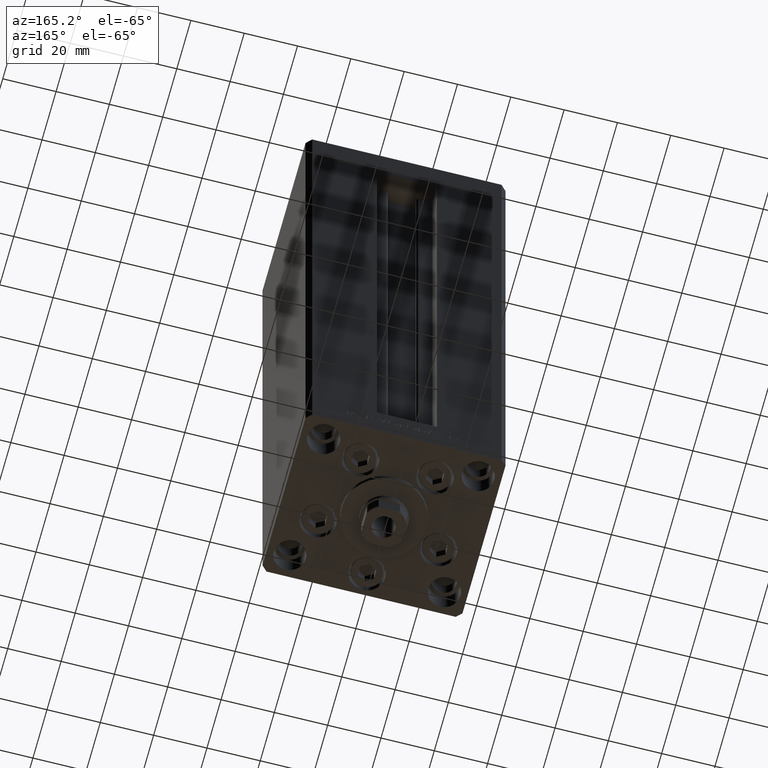
[diagram: clean part render]
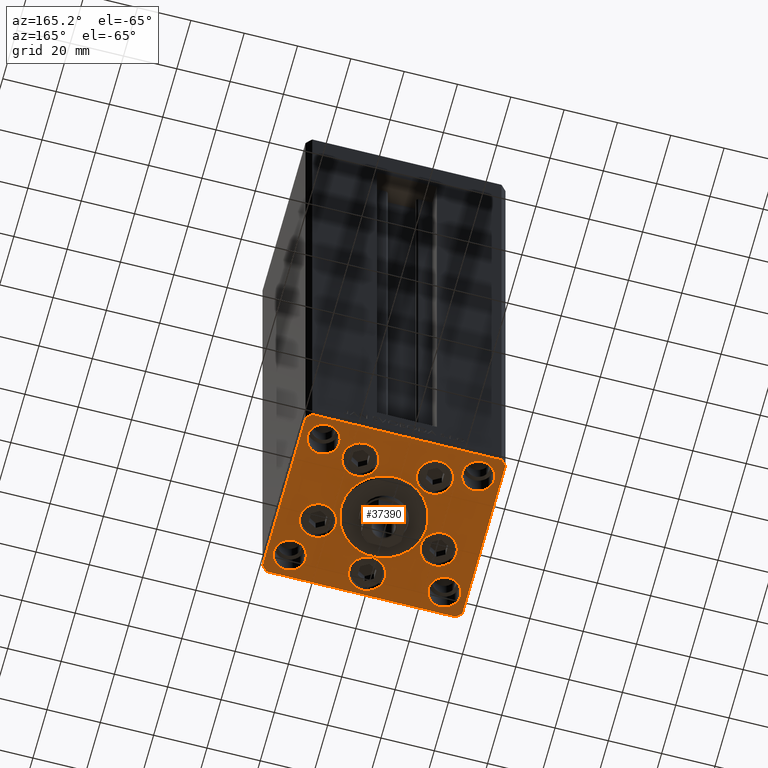
[diagram: same view with one face highlighted and labeled with its STEP entity id]
A machine part, auxiliary view. The second image highlights one B-rep face of the part: STEP entity #37390.
In plain terms, the highlighted planar face has unit normal (0, 0, -1).
Its self-contained STEP definition (entity closure, byte-faithful):
#359 = CARTESIAN_POINT ( 'NONE',  ( 35.50000000000001421, -32.49999999999992184, 0.000000000000000000 ) ) ;
#496 = ORIENTED_EDGE ( 'NONE', *, *, #2240, .F. ) ;
#528 = DIRECTION ( 'NONE',  ( 0.000000000000000000, 0.000000000000000000, 1.000000000000000000 ) ) ;
#600 = VERTEX_POINT ( 'NONE', #22889 ) ;
#1406 = CIRCLE ( 'NONE', #20385, 6.749999999999997335 ) ;
#1536 = CIRCLE ( 'NONE', #8664, 6.000000000000001776 ) ;
#1597 = CARTESIAN_POINT ( 'NONE',  ( -6.750000000001552536, -24.00000000000001066, 0.000000000000000000 ) ) ;
#1715 = CARTESIAN_POINT ( 'NONE',  ( 0.000000000000000000, -6.938893903907228378E-15, 0.000000000000000000 ) ) ;
#1798 = CARTESIAN_POINT ( 'NONE',  ( -35.00000000000000000, 24.00000000000000711, 0.000000000000000000 ) ) ;
#1935 = EDGE_CURVE ( 'NONE', #41405, #36576, #33788, .T. ) ;
#2147 = PLANE ( 'NONE',  #36180 ) ;
#2240 = EDGE_CURVE ( 'NONE', #36576, #41405, #34502, .T. ) ;
#2251 = CARTESIAN_POINT ( 'NONE',  ( -35.00000000000000000, -23.99999999999999645, 0.000000000000000000 ) ) ;
#2419 = CARTESIAN_POINT ( 'NONE',  ( 13.99106857963324124, 19.50000000000000000, 0.000000000000000000 ) ) ;
#2526 = CIRCLE ( 'NONE', #29377, 6.000000000000001776 ) ;
#3060 = EDGE_LOOP ( 'NONE', ( #496, #31984 ) ) ;
#3471 = EDGE_CURVE ( 'NONE', #28219, #40447, #32967, .T. ) ;
#3516 = ORIENTED_EDGE ( 'NONE', *, *, #20631, .F. ) ;
#4025 = CARTESIAN_POINT ( 'NONE',  ( -22.62741699796953299, -8.000000000000000000, 0.000000000000000000 ) ) ;
#4722 = DIRECTION ( 'NONE',  ( 1.000000000000000000, 0.000000000000000000, 0.000000000000000000 ) ) ;
#5156 = EDGE_CURVE ( 'NONE', #8485, #43566, #35390, .T. ) ;
#5217 = CARTESIAN_POINT ( 'NONE',  ( 20.74106857963323947, 19.50000000000000000, 0.000000000000000000 ) ) ;
#5413 = DIRECTION ( 'NONE',  ( 0.000000000000000000, 0.000000000000000000, 1.000000000000000000 ) ) ;
#5847 = AXIS2_PLACEMENT_3D ( 'NONE', #41131, #25776, #21097 ) ;
#5895 = DIRECTION ( 'NONE',  ( 0.000000000000000000, 0.000000000000000000, 1.000000000000000000 ) ) ;
#6058 = VERTEX_POINT ( 'NONE', #7255 ) ;
#6112 = ORIENTED_EDGE ( 'NONE', *, *, #12583, .F. ) ;
#6222 = ORIENTED_EDGE ( 'NONE', *, *, #5156, .F. ) ;
#6353 = AXIS2_PLACEMENT_3D ( 'NONE', #38885, #15626, #26985 ) ;
#6508 = ORIENTED_EDGE ( 'NONE', *, *, #48006, .F. ) ;
#6629 = CARTESIAN_POINT ( 'NONE',  ( -20.74106857963324302, 19.50000000000000000, 0.000000000000000000 ) ) ;
#6668 = DIRECTION ( 'NONE',  ( 0.000000000000000000, 1.000000000000000000, 0.000000000000000000 ) ) ;
#6968 = DIRECTION ( 'NONE',  ( 0.000000000000000000, 0.000000000000000000, 1.000000000000000000 ) ) ;
#7100 = AXIS2_PLACEMENT_3D ( 'NONE', #20287, #8430, #4722 ) ;
#7255 = CARTESIAN_POINT ( 'NONE',  ( 35.50000000000001421, -32.49999999999992184, 0.000000000000000000 ) ) ;
#7303 = VERTEX_POINT ( 'NONE', #35947 ) ;
#7353 = EDGE_CURVE ( 'NONE', #45140, #14384, #1406, .T. ) ;
#7479 = DIRECTION ( 'NONE',  ( 1.000000000000000000, 0.000000000000000000, 0.000000000000000000 ) ) ;
#7958 = CARTESIAN_POINT ( 'NONE',  ( -29.00000000000000000, -23.99999999999999645, 0.000000000000000000 ) ) ;
#8430 = DIRECTION ( 'NONE',  ( 0.000000000000000000, 0.000000000000000000, 1.000000000000000000 ) ) ;
#8485 = VERTEX_POINT ( 'NONE', #27507 ) ;
#8664 = AXIS2_PLACEMENT_3D ( 'NONE', #41184, #21646, #48112 ) ;
#8933 = EDGE_LOOP ( 'NONE', ( #6112, #38231 ) ) ;
#9131 = EDGE_CURVE ( 'NONE', #43734, #18466, #29944, .T. ) ;
#9251 = AXIS2_PLACEMENT_3D ( 'NONE', #2419, #20508, #40043 ) ;
#9348 = DIRECTION ( 'NONE',  ( -0.7071067811865524577, 0.7071067811865426878, 0.000000000000000000 ) ) ;
#9465 = ORIENTED_EDGE ( 'NONE', *, *, #23485, .T. ) ;
#9730 = EDGE_CURVE ( 'NONE', #27048, #38372, #20459, .T. ) ;
#9830 = FACE_BOUND ( 'NONE', #23410, .T. ) ;
#10068 = EDGE_CURVE ( 'NONE', #38372, #27048, #1536, .T. ) ;
#10100 = AXIS2_PLACEMENT_3D ( 'NONE', #18231, #47682, #48169 ) ;
#10123 = EDGE_CURVE ( 'NONE', #18466, #43734, #45775, .T. ) ;
#10402 = ORIENTED_EDGE ( 'NONE', *, *, #21008, .T. ) ;
#10794 = EDGE_CURVE ( 'NONE', #19507, #22353, #30762, .T. ) ;
#11188 = ORIENTED_EDGE ( 'NONE', *, *, #35158, .T. ) ;
#11199 = CARTESIAN_POINT ( 'NONE',  ( 15.87741699796952410, -8.000000000000000000, 0.000000000000000000 ) ) ;
#11251 = CARTESIAN_POINT ( 'NONE',  ( -37.50000000000001421, 30.50000000000000000, 0.000000000000000000 ) ) ;
#11635 = AXIS2_PLACEMENT_3D ( 'NONE', #23788, #528, #15642 ) ;
#11916 = DIRECTION ( 'NONE',  ( 0.000000000000000000, 0.000000000000000000, 1.000000000000000000 ) ) ;
#12419 = ORIENTED_EDGE ( 'NONE', *, *, #40176, .F. ) ;
#12450 = EDGE_LOOP ( 'NONE', ( #3516, #28535 ) ) ;
#12583 = EDGE_CURVE ( 'NONE', #40447, #28219, #40346, .T. ) ;
#12615 = AXIS2_PLACEMENT_3D ( 'NONE', #4025, #46577, #42143 ) ;
#12872 = DIRECTION ( 'NONE',  ( 1.000000000000000000, 0.000000000000000000, 0.000000000000000000 ) ) ;
#12881 = CIRCLE ( 'NONE', #46861, 6.000000000000001776 ) ;
#13148 = CARTESIAN_POINT ( 'NONE',  ( -23.00000000000000000, -23.99999999999999645, 0.000000000000000000 ) ) ;
#13205 = CIRCLE ( 'NONE', #9251, 6.749999999999997335 ) ;
#13295 = FACE_OUTER_BOUND ( 'NONE', #19908, .T. ) ;
#13754 = CARTESIAN_POINT ( 'NONE',  ( -7.241068579633241242, 19.50000000000000000, 0.000000000000000000 ) ) ;
#14040 = FACE_BOUND ( 'NONE', #12450, .T. ) ;
#14384 = VERTEX_POINT ( 'NONE', #5217 ) ;
#14432 = CARTESIAN_POINT ( 'NONE',  ( 0.000000000000000000, -6.938893903907228378E-15, 0.000000000000000000 ) ) ;
#14613 = CARTESIAN_POINT ( 'NONE',  ( -35.50000000000000711, 32.49999999999997868, 0.000000000000000000 ) ) ;
#15101 = DIRECTION ( 'NONE',  ( -0.7071067811865524577, -0.7071067811865426878, 0.000000000000000000 ) ) ;
#15626 = DIRECTION ( 'NONE',  ( 0.000000000000000000, 0.000000000000000000, 1.000000000000000000 ) ) ;
#15642 = DIRECTION ( 'NONE',  ( 1.000000000000000000, 0.000000000000000000, 0.000000000000000000 ) ) ;
#16766 = VECTOR ( 'NONE', #34098, 1000.000000000000000 ) ;
#16890 = DIRECTION ( 'NONE',  ( 0.000000000000000000, 0.000000000000000000, 1.000000000000000000 ) ) ;
#16901 = VECTOR ( 'NONE', #15101, 1000.000000000000000 ) ;
#17250 = FACE_BOUND ( 'NONE', #18909, .T. ) ;
#17347 = CARTESIAN_POINT ( 'NONE',  ( -35.50000000000001421, -32.50000000000000711, 0.000000000000000000 ) ) ;
#17502 = FACE_BOUND ( 'NONE', #30200, .T. ) ;
#17597 = LINE ( 'NONE', #17347, #25882 ) ;
#17750 = FACE_BOUND ( 'NONE', #41989, .T. ) ;
#17775 = CARTESIAN_POINT ( 'NONE',  ( 29.00000000000000355, -23.99999999999999645, 0.000000000000000000 ) ) ;
#17926 = CARTESIAN_POINT ( 'NONE',  ( 0.000000000000000000, -24.00000000000001066, 0.000000000000000000 ) ) ;
#17990 = DIRECTION ( 'NONE',  ( -0.000000000000000000, 0.000000000000000000, 1.000000000000000000 ) ) ;
#18006 = AXIS2_PLACEMENT_3D ( 'NONE', #14432, #29748, #26041 ) ;
#18231 = CARTESIAN_POINT ( 'NONE',  ( 22.62741699796953299, -8.000000000000000000, 0.000000000000000000 ) ) ;
#18233 = FACE_BOUND ( 'NONE', #3060, .T. ) ;
#18466 = VERTEX_POINT ( 'NONE', #1597 ) ;
#18512 = EDGE_CURVE ( 'NONE', #29212, #7303, #46405, .T. ) ;
#18610 = CARTESIAN_POINT ( 'NONE',  ( 29.00000000000000000, 24.00000000000000355, 0.000000000000000000 ) ) ;
#18805 = LINE ( 'NONE', #14613, #16901 ) ;
#18818 = ORIENTED_EDGE ( 'NONE', *, *, #10068, .F. ) ;
#18903 = CARTESIAN_POINT ( 'NONE',  ( -29.37741699796953654, -8.000000000000000000, 0.000000000000000000 ) ) ;
#18909 = EDGE_LOOP ( 'NONE', ( #34236, #18818 ) ) ;
#18960 = EDGE_LOOP ( 'NONE', ( #31008, #20838 ) ) ;
#19011 = CARTESIAN_POINT ( 'NONE',  ( 16.00000000000000355, -4.979459025271462852E-15, 0.000000000000000000 ) ) ;
#19175 = ORIENTED_EDGE ( 'NONE', *, *, #37023, .F. ) ;
#19291 = CARTESIAN_POINT ( 'NONE',  ( 23.00000000000000000, 24.00000000000000355, 0.000000000000000000 ) ) ;
#19370 = VECTOR ( 'NONE', #48381, 1000.000000000000000 ) ;
#19507 = VERTEX_POINT ( 'NONE', #31967 ) ;
#19559 = EDGE_CURVE ( 'NONE', #22977, #20839, #34898, .T. ) ;
#19727 = CARTESIAN_POINT ( 'NONE',  ( 0.000000000000000000, -24.00000000000001066, 0.000000000000000000 ) ) ;
#19908 = EDGE_LOOP ( 'NONE', ( #9465, #11188, #25220, #41433, #35538, #24958, #35458, #10402 ) ) ;
#20248 = LINE ( 'NONE', #20970, #44965 ) ;
#20287 = CARTESIAN_POINT ( 'NONE',  ( -22.62741699796953299, -8.000000000000000000, 0.000000000000000000 ) ) ;
#20385 = AXIS2_PLACEMENT_3D ( 'NONE', #46360, #16890, #39660 ) ;
#20459 = CIRCLE ( 'NONE', #39427, 6.000000000000001776 ) ;
#20507 = DIRECTION ( 'NONE',  ( 1.000000000000000000, 0.000000000000000000, 0.000000000000000000 ) ) ;
#20508 = DIRECTION ( 'NONE',  ( 0.000000000000000000, 0.000000000000000000, 1.000000000000000000 ) ) ;
#20631 = EDGE_CURVE ( 'NONE', #35851, #26401, #2526, .T. ) ;
#20838 = ORIENTED_EDGE ( 'NONE', *, *, #46603, .F. ) ;
#20839 = VERTEX_POINT ( 'NONE', #36137 ) ;
#20961 = FACE_BOUND ( 'NONE', #40023, .T. ) ;
#20970 = CARTESIAN_POINT ( 'NONE',  ( 37.50000000000000711, 30.50000000000001421, 0.000000000000000000 ) ) ;
#21008 = EDGE_CURVE ( 'NONE', #23167, #25856, #41526, .T. ) ;
#21097 = DIRECTION ( 'NONE',  ( 1.000000000000000000, 0.000000000000000000, 0.000000000000000000 ) ) ;
#21646 = DIRECTION ( 'NONE',  ( 0.000000000000000000, 0.000000000000000000, 1.000000000000000000 ) ) ;
#22060 = CARTESIAN_POINT ( 'NONE',  ( 29.00000000000000355, -23.99999999999999645, 0.000000000000000000 ) ) ;
#22084 = DIRECTION ( 'NONE',  ( 0.000000000000000000, 0.000000000000000000, 1.000000000000000000 ) ) ;
#22353 = VERTEX_POINT ( 'NONE', #18903 ) ;
#22567 = ORIENTED_EDGE ( 'NONE', *, *, #24739, .F. ) ;
#22889 = CARTESIAN_POINT ( 'NONE',  ( 37.50000000000000711, 30.50000000000001421, 0.000000000000000000 ) ) ;
#22977 = VERTEX_POINT ( 'NONE', #45750 ) ;
#22993 = ORIENTED_EDGE ( 'NONE', *, *, #26701, .F. ) ;
#23167 = VERTEX_POINT ( 'NONE', #11251 ) ;
#23278 = VERTEX_POINT ( 'NONE', #1798 ) ;
#23410 = EDGE_LOOP ( 'NONE', ( #39485, #24031 ) ) ;
#23485 = EDGE_CURVE ( 'NONE', #25856, #33364, #35123, .T. ) ;
#23558 = EDGE_CURVE ( 'NONE', #26401, #35851, #12881, .T. ) ;
#23788 = CARTESIAN_POINT ( 'NONE',  ( -13.99106857963324124, 19.50000000000000000, 0.000000000000000000 ) ) ;
#24031 = ORIENTED_EDGE ( 'NONE', *, *, #10123, .F. ) ;
#24213 = AXIS2_PLACEMENT_3D ( 'NONE', #32523, #28572, #36985 ) ;
#24432 = AXIS2_PLACEMENT_3D ( 'NONE', #17926, #40697, #33018 ) ;
#24739 = EDGE_CURVE ( 'NONE', #20839, #22977, #25553, .T. ) ;
#24958 = ORIENTED_EDGE ( 'NONE', *, *, #18512, .T. ) ;
#25220 = ORIENTED_EDGE ( 'NONE', *, *, #28619, .T. ) ;
#25553 = CIRCLE ( 'NONE', #35848, 5.999999999999998224 ) ;
#25606 = EDGE_CURVE ( 'NONE', #7303, #23167, #18805, .T. ) ;
#25776 = DIRECTION ( 'NONE',  ( 0.000000000000000000, 0.000000000000000000, 1.000000000000000000 ) ) ;
#25856 = VERTEX_POINT ( 'NONE', #48394 ) ;
#25882 = VECTOR ( 'NONE', #32429, 1000.000000000000000 ) ;
#25952 = VECTOR ( 'NONE', #6668, 1000.000000000000000 ) ;
#26041 = DIRECTION ( 'NONE',  ( 1.000000000000000000, 0.000000000000000000, 0.000000000000000000 ) ) ;
#26186 = AXIS2_PLACEMENT_3D ( 'NONE', #22060, #6968, #47550 ) ;
#26401 = VERTEX_POINT ( 'NONE', #2251 ) ;
#26701 = EDGE_CURVE ( 'NONE', #23278, #35255, #27990, .T. ) ;
#26985 = DIRECTION ( 'NONE',  ( 1.000000000000000000, 0.000000000000000000, 0.000000000000000000 ) ) ;
#27048 = VERTEX_POINT ( 'NONE', #31870 ) ;
#27507 = CARTESIAN_POINT ( 'NONE',  ( -16.00000000000000355, -6.938893903907228378E-15, 0.000000000000000000 ) ) ;
#27990 = CIRCLE ( 'NONE', #5847, 6.000000000000001776 ) ;
#28219 = VERTEX_POINT ( 'NONE', #6629 ) ;
#28319 = CARTESIAN_POINT ( 'NONE',  ( 35.50000000000000000, 32.49999999999999289, 0.000000000000000000 ) ) ;
#28386 = FACE_BOUND ( 'NONE', #8933, .T. ) ;
#28535 = ORIENTED_EDGE ( 'NONE', *, *, #23558, .F. ) ;
#28572 = DIRECTION ( 'NONE',  ( 0.000000000000000000, 0.000000000000000000, 1.000000000000000000 ) ) ;
#28619 = EDGE_CURVE ( 'NONE', #6058, #39136, #48870, .T. ) ;
#28697 = CARTESIAN_POINT ( 'NONE',  ( -29.00000000000000000, 24.00000000000000711, 0.000000000000000000 ) ) ;
#28788 = CARTESIAN_POINT ( 'NONE',  ( 37.50000000000000711, -30.49999999999992895, 0.000000000000000000 ) ) ;
#29032 = AXIS2_PLACEMENT_3D ( 'NONE', #1715, #43292, #12872 ) ;
#29154 = DIRECTION ( 'NONE',  ( 1.000000000000000000, 0.000000000000000000, 0.000000000000000000 ) ) ;
#29212 = VERTEX_POINT ( 'NONE', #44980 ) ;
#29377 = AXIS2_PLACEMENT_3D ( 'NONE', #7958, #11916, #30964 ) ;
#29748 = DIRECTION ( 'NONE',  ( 0.000000000000000000, 0.000000000000000000, 1.000000000000000000 ) ) ;
#29944 = CIRCLE ( 'NONE', #43370, 6.750000000001552536 ) ;
#30053 = EDGE_LOOP ( 'NONE', ( #12419, #31182 ) ) ;
#30200 = EDGE_LOOP ( 'NONE', ( #48829, #22567 ) ) ;
#30271 = CARTESIAN_POINT ( 'NONE',  ( 6.750000000001552536, -24.00000000000001066, 0.000000000000000000 ) ) ;
#30713 = CARTESIAN_POINT ( 'NONE',  ( 7.241068579633242130, 19.50000000000000000, 0.000000000000000000 ) ) ;
#30762 = CIRCLE ( 'NONE', #12615, 6.749999999999999112 ) ;
#30964 = DIRECTION ( 'NONE',  ( 1.000000000000000000, 0.000000000000000000, 0.000000000000000000 ) ) ;
#31008 = ORIENTED_EDGE ( 'NONE', *, *, #10794, .F. ) ;
#31182 = ORIENTED_EDGE ( 'NONE', *, *, #7353, .F. ) ;
#31870 = CARTESIAN_POINT ( 'NONE',  ( 35.00000000000000000, 24.00000000000000355, 0.000000000000000000 ) ) ;
#31967 = CARTESIAN_POINT ( 'NONE',  ( -15.87741699796953476, -8.000000000000000000, 0.000000000000000000 ) ) ;
#31984 = ORIENTED_EDGE ( 'NONE', *, *, #1935, .F. ) ;
#32429 = DIRECTION ( 'NONE',  ( 1.000000000000000000, 1.172770800660376149E-15, 0.000000000000000000 ) ) ;
#32523 = CARTESIAN_POINT ( 'NONE',  ( 22.62741699796953299, -8.000000000000000000, 0.000000000000000000 ) ) ;
#32884 = DIRECTION ( 'NONE',  ( 0.000000000000000000, 0.000000000000000000, 1.000000000000000000 ) ) ;
#32967 = CIRCLE ( 'NONE', #11635, 6.750000000000000000 ) ;
#33018 = DIRECTION ( 'NONE',  ( 1.000000000000000000, 0.000000000000000000, 0.000000000000000000 ) ) ;
#33318 = FACE_BOUND ( 'NONE', #18960, .T. ) ;
#33364 = VERTEX_POINT ( 'NONE', #47548 ) ;
#33788 = CIRCLE ( 'NONE', #10100, 6.750000000000009770 ) ;
#34098 = DIRECTION ( 'NONE',  ( 2.275047181608926165E-16, -1.000000000000000000, 0.000000000000000000 ) ) ;
#34212 = VECTOR ( 'NONE', #46008, 1000.000000000000000 ) ;
#34236 = ORIENTED_EDGE ( 'NONE', *, *, #9730, .F. ) ;
#34502 = CIRCLE ( 'NONE', #24213, 6.750000000000009770 ) ;
#34898 = CIRCLE ( 'NONE', #26186, 5.999999999999998224 ) ;
#35123 = LINE ( 'NONE', #42789, #34212 ) ;
#35158 = EDGE_CURVE ( 'NONE', #33364, #6058, #17597, .T. ) ;
#35255 = VERTEX_POINT ( 'NONE', #37391 ) ;
#35390 = CIRCLE ( 'NONE', #18006, 16.00000000000000355 ) ;
#35458 = ORIENTED_EDGE ( 'NONE', *, *, #25606, .T. ) ;
#35538 = ORIENTED_EDGE ( 'NONE', *, *, #44542, .T. ) ;
#35752 = DIRECTION ( 'NONE',  ( -1.000000000000000000, -1.954618001100627573E-16, 0.000000000000000000 ) ) ;
#35848 = AXIS2_PLACEMENT_3D ( 'NONE', #17775, #5895, #29154 ) ;
#35851 = VERTEX_POINT ( 'NONE', #13148 ) ;
#35947 = CARTESIAN_POINT ( 'NONE',  ( -35.50000000000000711, 32.49999999999997868, 0.000000000000000000 ) ) ;
#36137 = CARTESIAN_POINT ( 'NONE',  ( 23.00000000000000711, -23.99999999999999645, 0.000000000000000000 ) ) ;
#36180 = AXIS2_PLACEMENT_3D ( 'NONE', #43733, #17990, #44229 ) ;
#36566 = FACE_BOUND ( 'NONE', #30053, .T. ) ;
#36576 = VERTEX_POINT ( 'NONE', #40009 ) ;
#36623 = DIRECTION ( 'NONE',  ( 1.000000000000000000, 0.000000000000000000, 0.000000000000000000 ) ) ;
#36985 = DIRECTION ( 'NONE',  ( 1.000000000000000000, 0.000000000000000000, 0.000000000000000000 ) ) ;
#37023 = EDGE_CURVE ( 'NONE', #43566, #8485, #45600, .T. ) ;
#37390 = ADVANCED_FACE ( 'NONE', ( #17750, #28386, #36566, #18233, #9830, #33318, #17250, #20961, #14040, #17502, #13295 ), #2147, .T. ) ;
#37391 = CARTESIAN_POINT ( 'NONE',  ( -23.00000000000000000, 24.00000000000000711, 0.000000000000000000 ) ) ;
#37947 = CIRCLE ( 'NONE', #7100, 6.749999999999999112 ) ;
#38231 = ORIENTED_EDGE ( 'NONE', *, *, #3471, .F. ) ;
#38372 = VERTEX_POINT ( 'NONE', #19291 ) ;
#38885 = CARTESIAN_POINT ( 'NONE',  ( -13.99106857963324124, 19.50000000000000000, 0.000000000000000000 ) ) ;
#38944 = VECTOR ( 'NONE', #35752, 1000.000000000000000 ) ;
#39136 = VERTEX_POINT ( 'NONE', #28788 ) ;
#39427 = AXIS2_PLACEMENT_3D ( 'NONE', #18610, #22084, #7479 ) ;
#39485 = ORIENTED_EDGE ( 'NONE', *, *, #9131, .F. ) ;
#39502 = DIRECTION ( 'NONE',  ( 0.000000000000000000, 0.000000000000000000, 1.000000000000000000 ) ) ;
#39660 = DIRECTION ( 'NONE',  ( 1.000000000000000000, 0.000000000000000000, 0.000000000000000000 ) ) ;
#40009 = CARTESIAN_POINT ( 'NONE',  ( 29.37741699796954364, -8.000000000000000000, 0.000000000000000000 ) ) ;
#40023 = EDGE_LOOP ( 'NONE', ( #6508, #22993 ) ) ;
#40043 = DIRECTION ( 'NONE',  ( 1.000000000000000000, 0.000000000000000000, 0.000000000000000000 ) ) ;
#40087 = LINE ( 'NONE', #40578, #25952 ) ;
#40176 = EDGE_CURVE ( 'NONE', #14384, #45140, #13205, .T. ) ;
#40346 = CIRCLE ( 'NONE', #6353, 6.750000000000000000 ) ;
#40447 = VERTEX_POINT ( 'NONE', #13754 ) ;
#40578 = CARTESIAN_POINT ( 'NONE',  ( 37.50000000000000711, -30.49999999999992895, 0.000000000000000000 ) ) ;
#40697 = DIRECTION ( 'NONE',  ( 0.000000000000000000, 0.000000000000000000, 1.000000000000000000 ) ) ;
#41131 = CARTESIAN_POINT ( 'NONE',  ( -29.00000000000000000, 24.00000000000000711, 0.000000000000000000 ) ) ;
#41184 = CARTESIAN_POINT ( 'NONE',  ( 29.00000000000000000, 24.00000000000000355, 0.000000000000000000 ) ) ;
#41405 = VERTEX_POINT ( 'NONE', #11199 ) ;
#41433 = ORIENTED_EDGE ( 'NONE', *, *, #44311, .T. ) ;
#41526 = LINE ( 'NONE', #44995, #16766 ) ;
#41989 = EDGE_LOOP ( 'NONE', ( #6222, #19175 ) ) ;
#42143 = DIRECTION ( 'NONE',  ( 1.000000000000000000, 0.000000000000000000, 0.000000000000000000 ) ) ;
#42789 = CARTESIAN_POINT ( 'NONE',  ( -37.50000000000000000, -30.50000000000004263, 0.000000000000000000 ) ) ;
#43022 = CARTESIAN_POINT ( 'NONE',  ( -29.00000000000000000, -23.99999999999999645, 0.000000000000000000 ) ) ;
#43292 = DIRECTION ( 'NONE',  ( 0.000000000000000000, 0.000000000000000000, 1.000000000000000000 ) ) ;
#43370 = AXIS2_PLACEMENT_3D ( 'NONE', #19727, #39502, #46682 ) ;
#43478 = CIRCLE ( 'NONE', #45063, 6.000000000000001776 ) ;
#43566 = VERTEX_POINT ( 'NONE', #19011 ) ;
#43733 = CARTESIAN_POINT ( 'NONE',  ( 0.000000000000000000, 0.000000000000000000, 0.000000000000000000 ) ) ;
#43734 = VERTEX_POINT ( 'NONE', #30271 ) ;
#44229 = DIRECTION ( 'NONE',  ( 1.000000000000000000, 0.000000000000000000, 0.000000000000000000 ) ) ;
#44311 = EDGE_CURVE ( 'NONE', #39136, #600, #40087, .T. ) ;
#44542 = EDGE_CURVE ( 'NONE', #600, #29212, #20248, .T. ) ;
#44965 = VECTOR ( 'NONE', #9348, 1000.000000000000000 ) ;
#44980 = CARTESIAN_POINT ( 'NONE',  ( 35.50000000000000000, 32.49999999999999289, 0.000000000000000000 ) ) ;
#44995 = CARTESIAN_POINT ( 'NONE',  ( -37.50000000000001421, 30.50000000000000000, 0.000000000000000000 ) ) ;
#45063 = AXIS2_PLACEMENT_3D ( 'NONE', #28697, #32884, #36623 ) ;
#45140 = VERTEX_POINT ( 'NONE', #30713 ) ;
#45600 = CIRCLE ( 'NONE', #29032, 16.00000000000000355 ) ;
#45750 = CARTESIAN_POINT ( 'NONE',  ( 35.00000000000000000, -23.99999999999999645, 0.000000000000000000 ) ) ;
#45775 = CIRCLE ( 'NONE', #24432, 6.750000000001552536 ) ;
#46008 = DIRECTION ( 'NONE',  ( 0.7071067811865512365, -0.7071067811865439090, 0.000000000000000000 ) ) ;
#46360 = CARTESIAN_POINT ( 'NONE',  ( 13.99106857963324124, 19.50000000000000000, 0.000000000000000000 ) ) ;
#46405 = LINE ( 'NONE', #28319, #38944 ) ;
#46577 = DIRECTION ( 'NONE',  ( 0.000000000000000000, 0.000000000000000000, 1.000000000000000000 ) ) ;
#46603 = EDGE_CURVE ( 'NONE', #22353, #19507, #37947, .T. ) ;
#46682 = DIRECTION ( 'NONE',  ( 1.000000000000000000, 0.000000000000000000, 0.000000000000000000 ) ) ;
#46861 = AXIS2_PLACEMENT_3D ( 'NONE', #43022, #5413, #20507 ) ;
#47548 = CARTESIAN_POINT ( 'NONE',  ( -35.50000000000001421, -32.50000000000000711, 0.000000000000000000 ) ) ;
#47550 = DIRECTION ( 'NONE',  ( 1.000000000000000000, 0.000000000000000000, 0.000000000000000000 ) ) ;
#47682 = DIRECTION ( 'NONE',  ( 0.000000000000000000, 0.000000000000000000, 1.000000000000000000 ) ) ;
#48006 = EDGE_CURVE ( 'NONE', #35255, #23278, #43478, .T. ) ;
#48112 = DIRECTION ( 'NONE',  ( 1.000000000000000000, 0.000000000000000000, 0.000000000000000000 ) ) ;
#48169 = DIRECTION ( 'NONE',  ( 1.000000000000000000, 0.000000000000000000, 0.000000000000000000 ) ) ;
#48381 = DIRECTION ( 'NONE',  ( 0.7071067811865463515, 0.7071067811865487940, 0.000000000000000000 ) ) ;
#48394 = CARTESIAN_POINT ( 'NONE',  ( -37.50000000000000000, -30.50000000000004263, 0.000000000000000000 ) ) ;
#48829 = ORIENTED_EDGE ( 'NONE', *, *, #19559, .F. ) ;
#48870 = LINE ( 'NONE', #359, #19370 ) ;